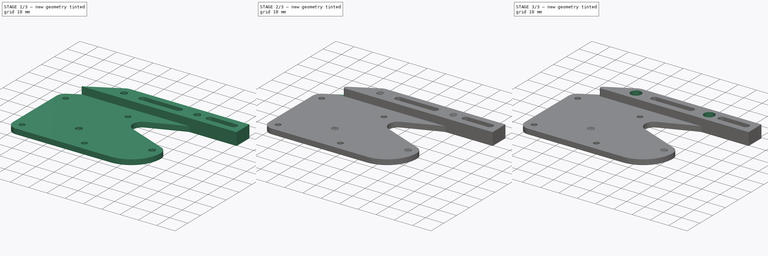
[diagram: build sequence overview — one tinted view per stage of 3, left to right]
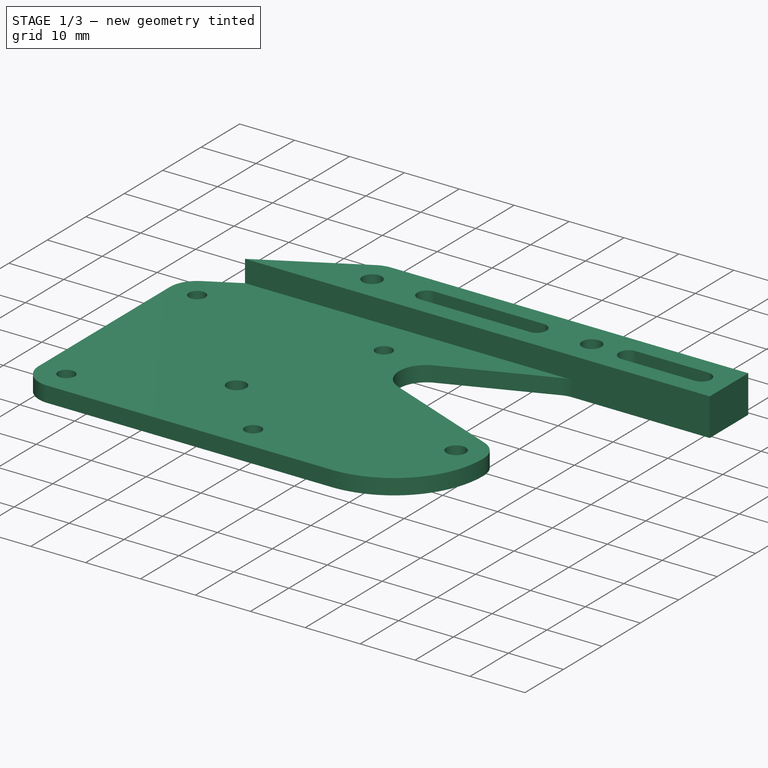
[diagram: stage 1 of 3 — iso view after this stage's code; geometry added in this stage tinted green]
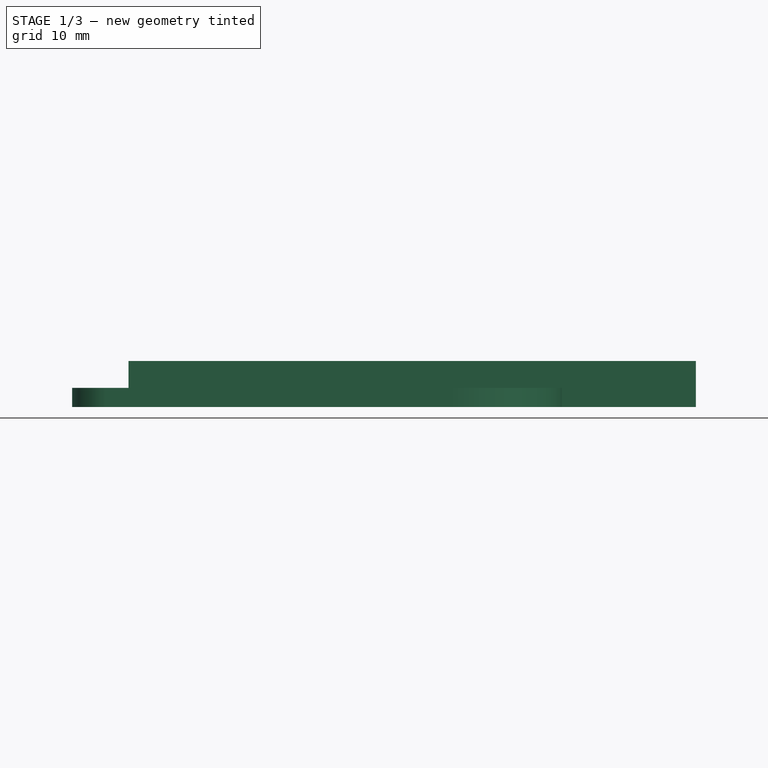
[diagram: stage 1 of 3 — front view after this stage's code; geometry added in this stage tinted green]
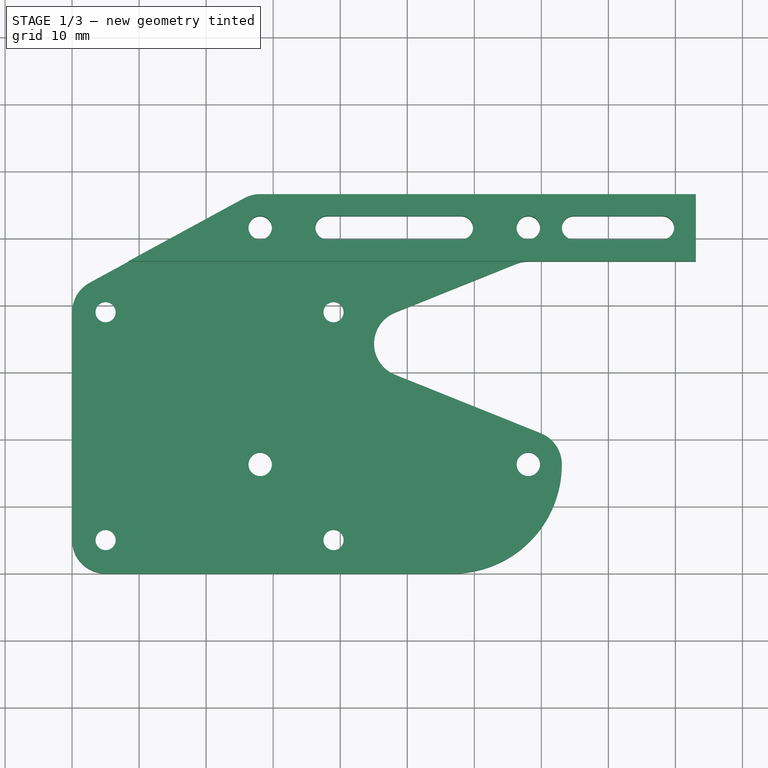
[diagram: stage 1 of 3 — top view after this stage's code; geometry added in this stage tinted green]
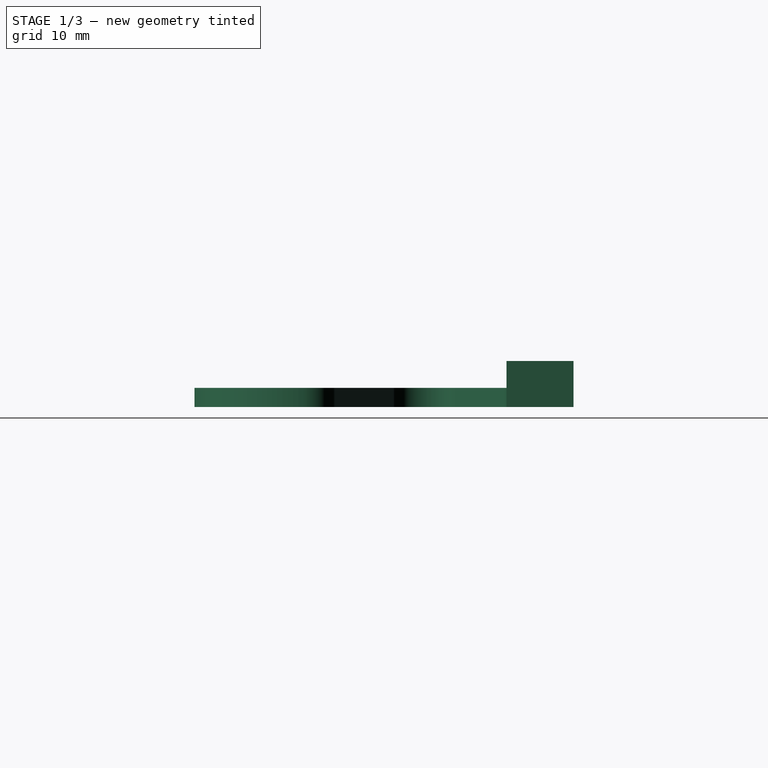
[diagram: stage 1 of 3 — right view after this stage's code; geometry added in this stage tinted green]
FCSTD DOCUMENT  (FreeCAD 2022.111R28429 (Git))
Label: E1_Plate
License: All rights reserved
LicenseURL: http://en.wikipedia.org/wiki/All_rights_reserved
objects: Sketcher::SketchObject×6, PartDesign::Pocket×4, PartDesign::Hole×2, PartDesign::Pad×1, PartDesign::Fillet×1, PartDesign::Body×1
note: 31 computed .brp shape members not serialized (recipe doc carries the construction recipe); baked Part::Feature solids carry a one-line shape summary decoded from their .brp

FEATURE [Sketcher::SketchObject] Sketch006
  FullyConstrained = false
  MapMode = 5
  Support = -> [XY_Plane001]
  TreeRank = 0
  sketch-geometry (61):
    g0: LineSegment [constr] StartX=5 StartY=39 StartZ=0 EndX=39 EndY=39 EndZ=0
    g1: LineSegment [constr] StartX=39 StartY=39 StartZ=0 EndX=39 EndY=5 EndZ=0
    g2: LineSegment [constr] StartX=39 StartY=5 StartZ=0 EndX=5 EndY=5 EndZ=0
    g3: LineSegment [constr] StartX=5 StartY=5 StartZ=0 EndX=5 EndY=39 EndZ=0
    g4: LineSegment [constr] StartX=28.06 StartY=51.55 StartZ=0 EndX=68.06 EndY=51.55 EndZ=0
    g5: LineSegment [constr] StartX=68.06 StartY=51.55 StartZ=0 EndX=68.06 EndY=16.3 EndZ=0
    g6: LineSegment [constr] StartX=68.06 StartY=16.3 StartZ=0 EndX=28.06 EndY=16.3 EndZ=0
    g7: LineSegment [constr] StartX=28.06 StartY=16.3 StartZ=0 EndX=28.06 EndY=51.55 EndZ=0
    g8: Circle CenterX=5 CenterY=5 CenterZ=0 NormalX=0 NormalY=0 NormalZ=1 AngleXU=0 Radius=1.5
    g9: Circle CenterX=39 CenterY=5 CenterZ=0 NormalX=0 NormalY=0 NormalZ=1 AngleXU=0 Radius=1.5
    g10: Circle CenterX=39 CenterY=39 CenterZ=0 NormalX=0 NormalY=0 NormalZ=1 AngleXU=0 Radius=1.5
    g11: Circle CenterX=5 CenterY=39 CenterZ=0 NormalX=0 NormalY=0 NormalZ=1 AngleXU=0 Radius=1.5
    g12: Circle CenterX=28.06 CenterY=51.55 CenterZ=0 NormalX=0 NormalY=0 NormalZ=1 AngleXU=0 Radius=1.75
    g13: Circle CenterX=68.06 CenterY=51.55 CenterZ=0 NormalX=0 NormalY=0 NormalZ=1 AngleXU=0 Radius=1.75
    g14: Circle CenterX=68.06 CenterY=16.3 CenterZ=0 NormalX=0 NormalY=0 NormalZ=1 AngleXU=0 Radius=1.75
    g15: Circle CenterX=28.06 CenterY=16.3 CenterZ=0 NormalX=0 NormalY=0 NormalZ=1 AngleXU=0 Radius=1.75
    g16: LineSegment StartX=5 StartY=0 StartZ=0 EndX=56.76 EndY=0 EndZ=0
    g17: LineSegment StartX=48.1831 StartY=38.953 StartZ=0 EndX=66.1961 EndY=46.1896 EndZ=0
    g18: LineSegment StartX=68.06 StartY=46.55 StartZ=0 EndX=93.06 EndY=46.55 EndZ=0
    g19: LineSegment StartX=93.06 StartY=56.55 StartZ=0 EndX=28.06 EndY=56.55 EndZ=0
    g20: LineSegment StartX=-9e-16 StartY=39 StartZ=0 EndX=-9e-16 EndY=5 EndZ=0
    g21: LineSegment [constr] StartX=5 StartY=5 StartZ=0 EndX=5 EndY=0 EndZ=0
    g22: LineSegment [constr] StartX=5 StartY=5 StartZ=0 EndX=0 EndY=5 EndZ=0
    g23: ArcOfCircle CenterX=68.06 CenterY=16.3 CenterZ=0 NormalX=0 NormalY=0 NormalZ=1 AngleXU=0 Radius=5 StartAngle=0 EndAngle=1.18879
    g24: LineSegment [constr] StartX=68.06 StartY=16.3 StartZ=0 EndX=73.06 EndY=16.3 EndZ=0
    g25: ArcOfCircle CenterX=68.06 CenterY=41.55 CenterZ=0 NormalX=0 NormalY=0 NormalZ=1 AngleXU=0 Radius=5 StartAngle=1.5708 EndAngle=1.9528
    g26: LineSegment [constr] StartX=68.06 StartY=51.55 StartZ=0 EndX=68.06 EndY=46.55 EndZ=0
    g27: LineSegment [constr] StartX=5 StartY=39 StartZ=0 EndX=-9e-16 EndY=39 EndZ=0
    g28: LineSegment [constr] StartX=28.06 StartY=51.55 StartZ=0 EndX=28.06 EndY=56.55 EndZ=0
    g29: ArcOfCircle CenterX=28.06 CenterY=51.55 CenterZ=0 NormalX=0 NormalY=0 NormalZ=1 AngleXU=0 Radius=5 StartAngle=1.5708 EndAngle=2.0692
    g30: ArcOfCircle CenterX=5 CenterY=39 CenterZ=0 NormalX=0 NormalY=0 NormalZ=1 AngleXU=0 Radius=5 StartAngle=2.0692 EndAngle=3.14159
    g31: LineSegment StartX=2.60988 StartY=43.3917 StartZ=0 EndX=25.6699 EndY=55.9417 EndZ=0
    g32: LineSegment StartX=93.06 StartY=56.55 StartZ=0 EndX=93.06 EndY=51.55 EndZ=0
    g33: LineSegment StartX=93.06 StartY=51.55 StartZ=0 EndX=93.06 EndY=46.55 EndZ=0
    g34: ArcOfCircle CenterX=56.76 CenterY=16.3 CenterZ=0 NormalX=0 NormalY=0 NormalZ=1 AngleXU=0 Radius=16.3 StartAngle=4.71239 EndAngle=6.28319
    g35: ArcOfCircle CenterX=5 CenterY=5 CenterZ=0 NormalX=0 NormalY=0 NormalZ=1 AngleXU=0 Radius=5 StartAngle=3.14159 EndAngle=4.71239
    g36: ArcOfCircle CenterX=38.06 CenterY=51.55 CenterZ=0 NormalX=0 NormalY=0 NormalZ=1 AngleXU=0 Radius=1.75 StartAngle=1.5708 EndAngle=4.71239
    g37: ArcOfCircle CenterX=58.06 CenterY=51.55 CenterZ=0 NormalX=0 NormalY=0 NormalZ=1 AngleXU=0 Radius=1.75 StartAngle=4.71239 EndAngle=7.85398
    g38: LineSegment StartX=38.06 StartY=49.8 StartZ=0 EndX=58.06 EndY=49.8 EndZ=0
    g39: LineSegment StartX=38.06 StartY=53.3 StartZ=0 EndX=58.06 EndY=53.3 EndZ=0
    g40: LineSegment StartX=48.1831 StartY=29.6738 StartZ=0 EndX=69.9239 EndY=20.9396 EndZ=0
    g41: ArcOfCircle CenterX=50.047 CenterY=34.3134 CenterZ=0 NormalX=0 NormalY=0 NormalZ=1 AngleXU=0 Radius=5 StartAngle=1.9528 EndAngle=4.33038
    g42: LineSegment [constr] StartX=50.047 StartY=34.3134 StartZ=0 EndX=45.047 EndY=34.3134 EndZ=0
    g43: LineSegment [constr] StartX=48.1831 StartY=38.953 StartZ=0 EndX=48.1831 EndY=34.3134 EndZ=0
    g44: LineSegment [constr] StartX=48.1831 StartY=29.6738 StartZ=0 EndX=48.1831 EndY=34.3134 EndZ=0
    g45: ArcOfCircle CenterX=74.81 CenterY=51.55 CenterZ=0 NormalX=0 NormalY=0 NormalZ=1 AngleXU=0 Radius=1.75 StartAngle=1.5708 EndAngle=4.71239
    g46: ArcOfCircle CenterX=88.06 CenterY=51.55 CenterZ=0 NormalX=0 NormalY=0 NormalZ=1 AngleXU=0 Radius=1.75 StartAngle=4.71239 EndAngle=7.85398
    g47: LineSegment StartX=74.81 StartY=49.8 StartZ=0 EndX=88.06 EndY=49.8 EndZ=0
    g48: LineSegment StartX=74.81 StartY=53.3 StartZ=0 EndX=88.06 EndY=53.3 EndZ=0
    g49: LineSegment [constr] StartX=74.81 StartY=51.55 StartZ=0 EndX=69.81 EndY=51.55 EndZ=0
    g50: LineSegment [constr] StartX=88.06 StartY=51.55 StartZ=0 EndX=93.06 EndY=51.55 EndZ=0
    g51: ArcOfCircle [constr] CenterX=15.6807 CenterY=33.5299 CenterZ=0 NormalX=0 NormalY=0 NormalZ=1 AngleXU=0 Radius=5 StartAngle=1.5708 EndAngle=3.14159
    g52: ArcOfCircle [constr] CenterX=28.3193 CenterY=33.5299 CenterZ=0 NormalX=0 NormalY=0 NormalZ=1 AngleXU=0 Radius=5 StartAngle=5.49779 EndAngle=7.85398
    g53: ArcOfCircle [constr] CenterX=15.6807 CenterY=20.8913 CenterZ=0 NormalX=0 NormalY=0 NormalZ=1 AngleXU=0 Radius=5 StartAngle=3.14159 EndAngle=5.49779
    g54: LineSegment [constr] StartX=15.6807 StartY=38.5299 StartZ=0 EndX=28.3193 EndY=38.5299 EndZ=0
    g55: LineSegment [constr] StartX=31.8548 StartY=29.9943 StartZ=0 EndX=19.2163 EndY=17.3558 EndZ=0
    g56: LineSegment [constr] StartX=10.6807 StartY=20.8913 StartZ=0 EndX=10.6807 EndY=33.5299 EndZ=0
    g57: Circle [constr] CenterX=28.06 CenterY=16.3 CenterZ=0 NormalX=0 NormalY=0 NormalZ=1 AngleXU=0 Radius=7
    g58: Circle [constr] CenterX=5 CenterY=39 CenterZ=0 NormalX=0 NormalY=0 NormalZ=1 AngleXU=0 Radius=7
    g59: Circle [constr] CenterX=5 CenterY=5 CenterZ=0 NormalX=0 NormalY=0 NormalZ=1 AngleXU=0 Radius=7
    g60: Circle [constr] CenterX=39 CenterY=39 CenterZ=0 NormalX=0 NormalY=0 NormalZ=1 AngleXU=0 Radius=7
  constraints (156):
    c: Coincident(g0,g1)
    c: Coincident(g1,g2)
    c: Coincident(g2,g3)
    c: Coincident(g3,g0)
    c: Horizontal(g0)
    c: Horizontal(g2)
    c: Vertical(g1)
    c: Vertical(g3)
    c: Coincident(g4,g5)
    c: Coincident(g5,g6)
    c: Coincident(g6,g7)
    c: Coincident(g7,g4)
    c: Horizontal(g4)
    c: Horizontal(g6)
    c: Vertical(g5)
    c: Vertical(g7)
    c: Coincident(g8,g2)
    c: Coincident(g9,g1)
    c: Coincident(g10,g0)
    c: Coincident(g11,g0)
    c: Diameter(g11) = 3
    c: Equal(g11,g9)
    c: Equal(g11,g8)
    c: Coincident(g12,g4)
    c: Coincident(g13,g4)
    c: Coincident(g14,g5)
    c: Coincident(g15,g6)
    c: Diameter(g15) = 3.5
    c: Equal(g15,g14)
    c: Equal(g15,g13)
    c: Equal(g15,g12)
    c: DistanceX(g4,g4) = 40
    c: DistanceY(g5,g5) = 35.25
    c: DistanceX(g0,g0) = 34
    c: DistanceY(g1,g1) = 34
    c: DistanceX(g8,g15) = 23.06
    c: DistanceY(g8,g15) = 11.3
    c: Horizontal(g16)
    c: Horizontal(g18)
    c: Horizontal(g19)
    c: Vertical(g20)
    c: Coincident(g21,g8)
    c: Vertical(g21)
    c: Coincident(g22,g8)
    c: PointOnObject(g22,g20)
    c: Horizontal(g22)
    c: Equal(g21,g22)
    c: DistanceX(g22,g22) = 5
    c: Coincident(g24,g23) = -1.5708
    c: Coincident(g24,g14)
    c: Equal(g24,g21)
    c: Tangent(g18,g25) = 1.5708
    c: Tangent(g17,g25) = 1.5708
    c: Equal(g25,g23)
    c: Coincident(g26,g13)
    c: PointOnObject(g26,g25)
    c: Perpendicular(g25,g26)
    c: Equal(g26,g24)
    c: Horizontal(g20,g11)
    c: Coincident(g27,g11)
    c: Coincident(g27,g20)
    c: Coincident(g28,g12)
    c: Vertical(g28)
    c: Coincident(g19,g28)
    c: Equal(g28,g27)
    c: Coincident(g29,g12)
    c: Coincident(g29,g19)
    c: Coincident(g30,g11)
    c: Coincident(g30,g20)
    c: Tangent(g31,g29) = 1.5708
    c: Tangent(g31,g30) = 1.5708
    c: Coincident(g32,g19)
    c: Coincident(g33,g32)
    c: Coincident(g33,g18)
    c: Vertical(g33)
    c: Vertical(g32)
    c: Equal(g32,g33)
    c: Horizontal(g32,g13)
    c: Coincident(g23,g14)
    c: DistanceX(g18,g18) = 25
    c: Tangent(g16,g34) = -1.5708
    c: Tangent(g23,g34) = -1.5708
    c: Horizontal(g24)
    c: Tangent(g20,g35) = -1.5708
    c: Tangent(g16,g35) = -1.5708
    c: Coincident(g16,g21)
    c: Vertical(g20,g-1)
    c: Horizontal(g16,g-1)
    c: Tangent(g36,g39) = 1.5708
    c: Tangent(g36,g38) = -1.5708
    c: Tangent(g38,g37) = -1.5708
    c: Tangent(g39,g37) = 1.5708
    c: Horizontal(g38)
    c: Equal(g36,g37)
    c: PointOnObject(g36,g4)
    c: Equal(g37,g13)
    c: DistanceX(g12,g36) = 10
    c: DistanceX(g37,g13) = 10
    c: Tangent(g40,g23) = 1.5708
    c: Equal(g41,g23)
    c: Tangent(g41,g40) = -1.5708
    c: Tangent(g41,g17) = 1.5708
    c: Coincident(g42,g41)
    c: PointOnObject(g42,g41)
    c: Horizontal(g42)
    c: Coincident(g43,g17)
    c: PointOnObject(g43,g42)
    c: Vertical(g43)
    c: Coincident(g44,g40)
    c: Coincident(g44,g43)
    c: Vertical(g44)
    c: Tangent(g45,g48) = 1.5708
    c: Tangent(g45,g47) = -1.5708
    c: Tangent(g47,g46) = -1.5708
    c: Tangent(g48,g46) = 1.5708
    c: Horizontal(g47)
    c: Equal(g45,g46)
    c: Equal(g37,g45)
    c: Horizontal(g45,g37)
    c: Coincident(g49,g45)
    c: PointOnObject(g49,g13)
    c: Horizontal(g49)
    c: Coincident(g50,g46)
    c: Coincident(g50,g32)
    c: Equal(g49,g50)
    c: DistanceX(g50,g50) = 5
    c: Equal(g51,g53)
    c: Equal(g53,g52)
    c: Equal(g52,g23)
    c: Coincident(g54,g52)
    c: Coincident(g55,g52)
    c: Coincident(g55,g53)
    c: Coincident(g56,g53)
    c: Coincident(g56,g51)
    c: Vertical(g56)
    c: Horizontal(g54)
    c: Coincident(g51,g54)
    c: Tangent(g54,g52)
    c: Tangent(g52,g55)
    c: Tangent(g55,g53)
    c: Tangent(g53,g56)
    c: Tangent(g56,g51)
    c: Tangent(g51,g54)
    c: Coincident(g57,g15)
    c: Tangent(g57,g55)
    c: Coincident(g58,g11)
    c: Tangent(g58,g51)
    c: Coincident(g59,g8)
    c: Equal(g58,g59)
    c: Coincident(g60,g10)
    c: Equal(g60,g57)
    c: Tangent(g52,g60)
    c: Tangent(g60,g41)
    c: Equal(g59,g57)
    c: Radius(g60) = 7
    c: Angle(g55) = -2.35619
FEATURE [PartDesign::Pad] Pad002
  ClaimChildren = false
  Direction = (1,1,1)
  Fit = 0
  FitJoin = 0
  InnerFit = 0
  InnerFitJoin = 0
  InnerTaperAngle = 0
  InnerTaperAngleRev = 0
  Length = 6.85
  Length2 = 100
  Linearize = true
  NewSolid = false
  Profile = -> Sketch006
  Refine = true
  Suppress = false
  TreeRank = 0
  Type = 0
  _ProfileBasedVersion = 1
FEATURE [PartDesign::Hole] Hole001
  BaseFeature = -> Pad002
  ClaimChildren = false
  CustomThreadClearance = 0
  Depth = 1.8
  DepthType = 0
  Diameter = 6
  DrillForDepth = false
  DrillPoint = 0
  DrillPointAngle = 118
  Fit = 0
  FitJoin = 0
  HoleCutCountersinkAngle = 90
  HoleCutCustomValues = false
  HoleCutDepth = 0
  HoleCutDiameter = 6.1
  HoleCutType = 0
  InnerFit = 0
  InnerFitJoin = 0
  ModelThread = false
  NewSolid = false
  Profile = -> Pad002 [Edge60,Edge57,Edge58,Edge59]
  Refine = true
  Reversed = true
  Suppress = false
  Tapered = false
  TaperedAngle = 90
  ThreadClass = 0
  ThreadDepth = 1.8
  ThreadDepthType = 0
  ThreadDirection = 0
  ThreadFit = 0
  ThreadSize = 0
  ThreadType = 0
  Threaded = false
  TreeRank = 0
  UseCustomThreadClearance = false
  _ProfileBasedVersion = 1
FEATURE [Sketcher::SketchObject] Sketch008
  FullyConstrained = true
  MapMode = 5
  Placement = pos=(0,0,2.85) rot=(0,0,1;0rad)
  TreeRank = 0
FEATURE [Sketcher::SketchObject] Sketch
  ExternalGeometry = -> [Hole001]
  FullyConstrained = false
  MapMode = 5
  Placement = pos=(0,0,6.85) rot=(0,0,1;0rad)
  Support = -> [Hole001]
  TreeRank = 0
  sketch-geometry (4):
    g0: LineSegment StartX=-10.7105 StartY=46.55 StartZ=0 EndX=86.9712 EndY=46.55 EndZ=0
    g1: LineSegment StartX=86.9712 StartY=46.55 StartZ=0 EndX=86.9712 EndY=-9.55124 EndZ=0
    g2: LineSegment StartX=86.9712 StartY=-9.55124 StartZ=0 EndX=-10.7105 EndY=-9.55124 EndZ=0
    g3: LineSegment StartX=-10.7105 StartY=-9.55124 StartZ=0 EndX=-10.7105 EndY=46.55 EndZ=0
  constraints (9):
    c: Coincident(g0,g1)
    c: Coincident(g1,g2)
    c: Coincident(g2,g3)
    c: Coincident(g3,g0)
    c: Horizontal(g0)
    c: Horizontal(g2)
    c: Vertical(g1)
    c: Vertical(g3)
    c: Horizontal(g-3,g0)
FEATURE [PartDesign::Pocket] Pocket
  BaseFeature = -> Hole001
  ClaimChildren = false
  Fit = 0
  FitJoin = 0
  InnerFit = 0
  InnerFitJoin = 0
  InnerTaperAngle = 0
  InnerTaperAngleRev = 0
  Length = 4
  Length2 = 100
  Linearize = true
  NewSolid = false
  Profile = -> Sketch
  Refine = true
  Suppress = false
  TreeRank = 0
  Type = 0
  _ProfileBasedVersion = 1
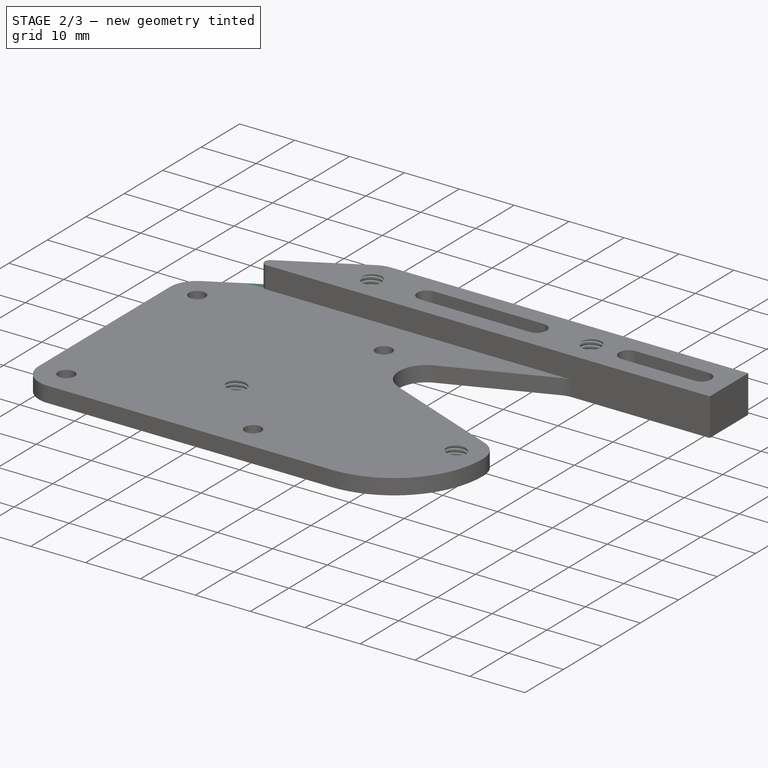
[diagram: stage 2 of 3 — iso view after this stage's code; geometry added in this stage tinted green]
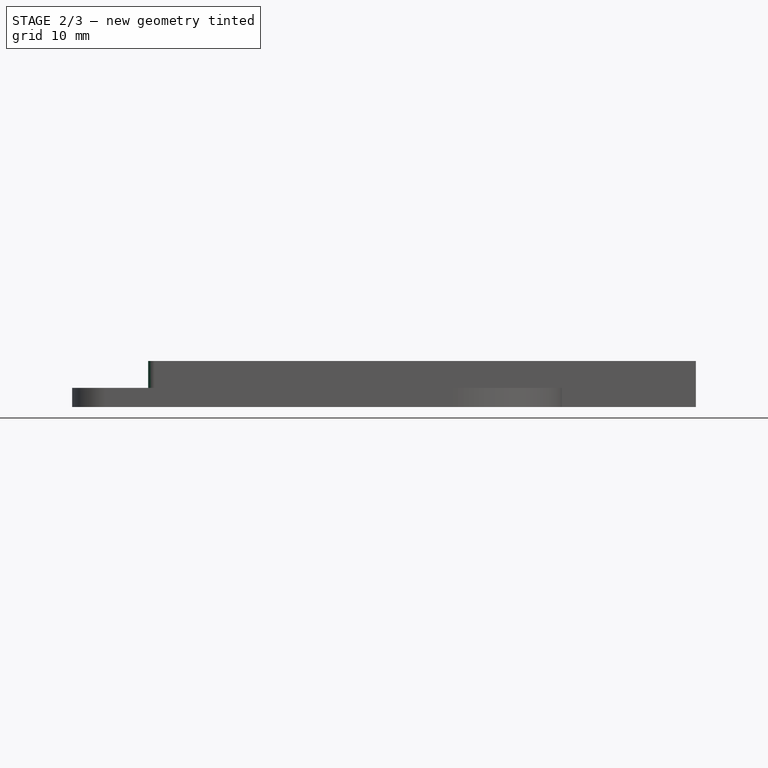
[diagram: stage 2 of 3 — front view after this stage's code; geometry added in this stage tinted green]
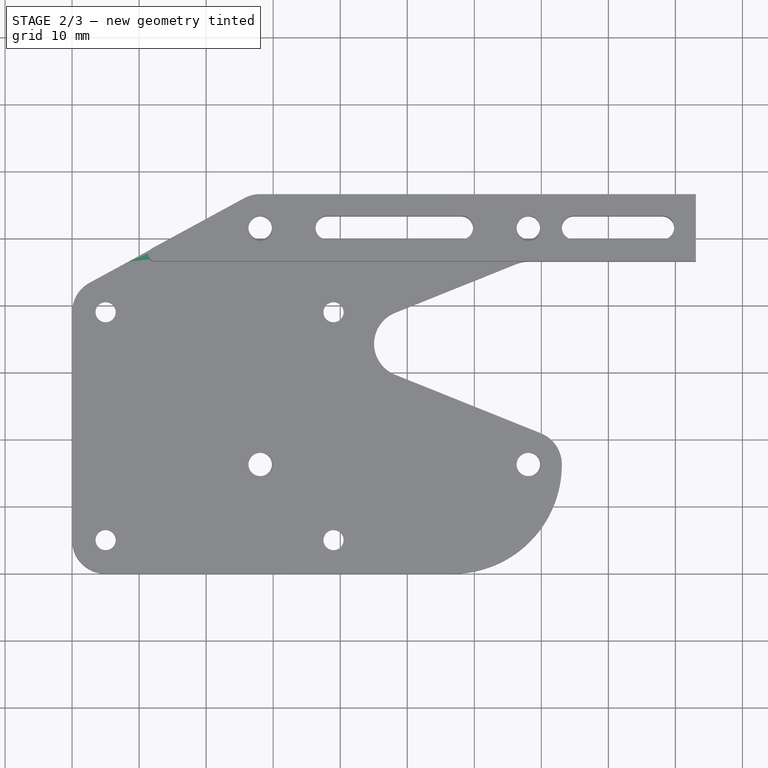
[diagram: stage 2 of 3 — top view after this stage's code; geometry added in this stage tinted green]
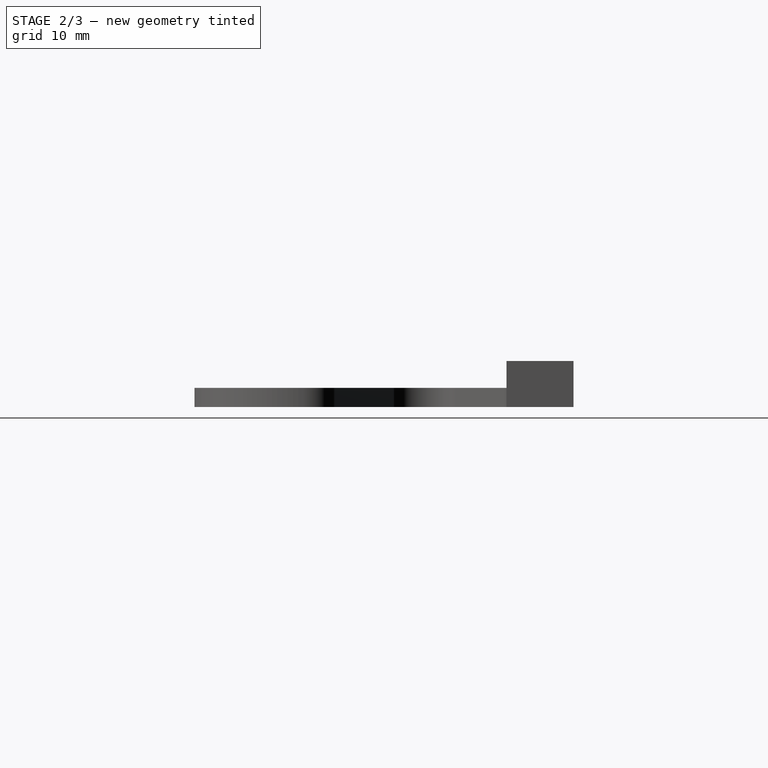
[diagram: stage 2 of 3 — right view after this stage's code; geometry added in this stage tinted green]
FEATURE [PartDesign::Fillet] Fillet
  Base = -> Pocket [Edge55]
  BaseFeature = -> Pocket
  NewSolid = false
  Radius = 1
  Refine = true
  SupportTransform = false
  Suppress = false
  TreeRank = 0
FEATURE [PartDesign::Hole] Hole
  BaseFeature = -> Fillet
  ClaimChildren = false
  CustomThreadClearance = 0
  Depth = 25
  DepthType = 1
  Diameter = 3.322
  DrillForDepth = false
  DrillPoint = 1
  DrillPointAngle = 118
  Fit = 0
  FitJoin = 0
  HoleCutCountersinkAngle = 90
  HoleCutCustomValues = false
  HoleCutDepth = 0
  HoleCutDiameter = 6.1
  HoleCutType = 0
  InnerFit = 0
  InnerFitJoin = 0
  ModelThread = true
  NewSolid = false
  Profile = -> Fillet [Edge89,Edge84,Edge53,Edge57]
  Refine = true
  Reversed = true
  Suppress = false
  Tapered = false
  TaperedAngle = 90
  ThreadClass = 0
  ThreadDepth = 220.402
  ThreadDepthType = 0
  ThreadDirection = 0
  ThreadFit = 0
  ThreadSize = 11
  ThreadType = 1
  Threaded = true
  TreeRank = 0
  UseCustomThreadClearance = false
  _ProfileBasedVersion = 1
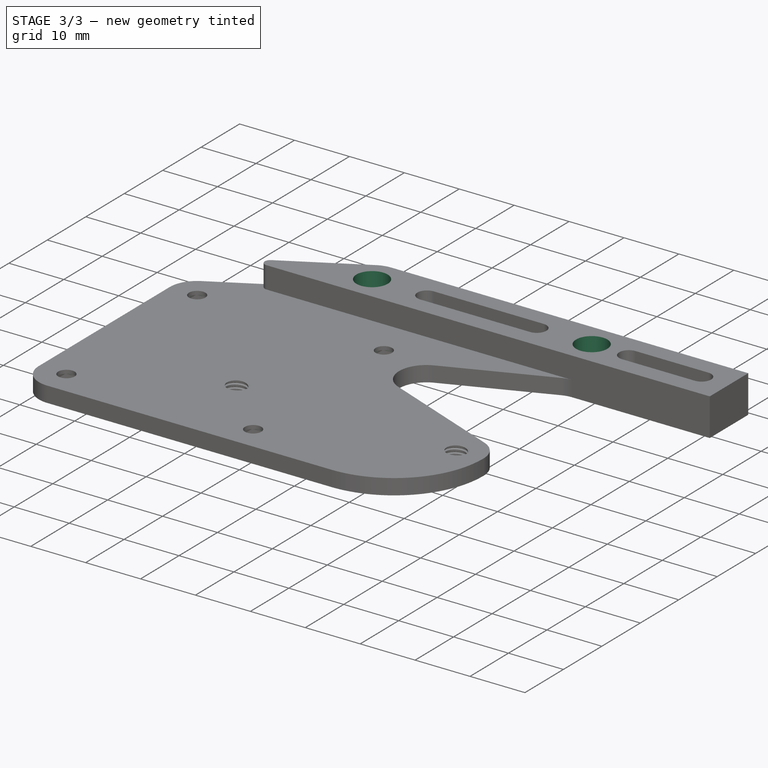
[diagram: stage 3 of 3 — iso view after this stage's code; geometry added in this stage tinted green]
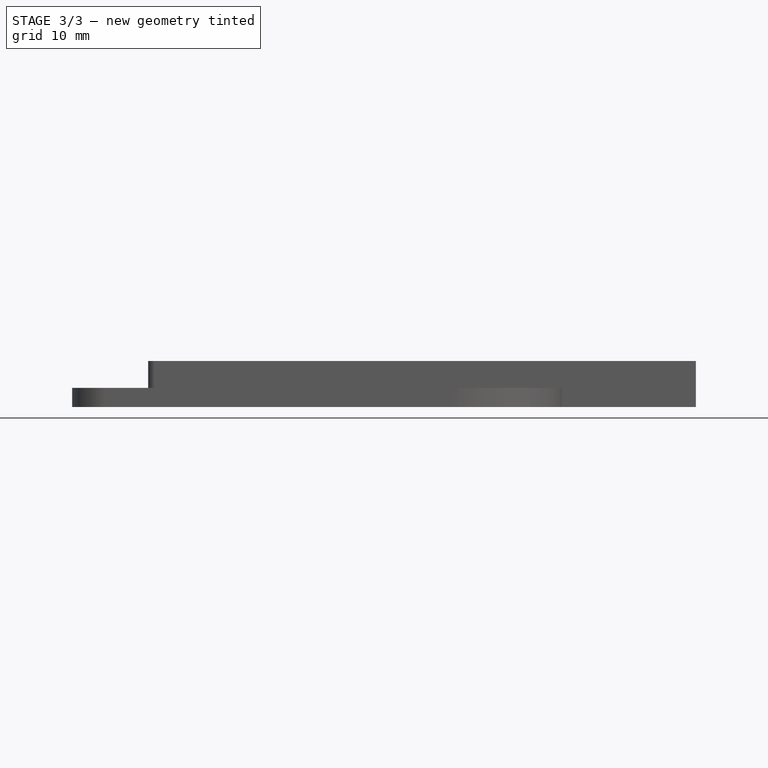
[diagram: stage 3 of 3 — front view after this stage's code; geometry added in this stage tinted green]
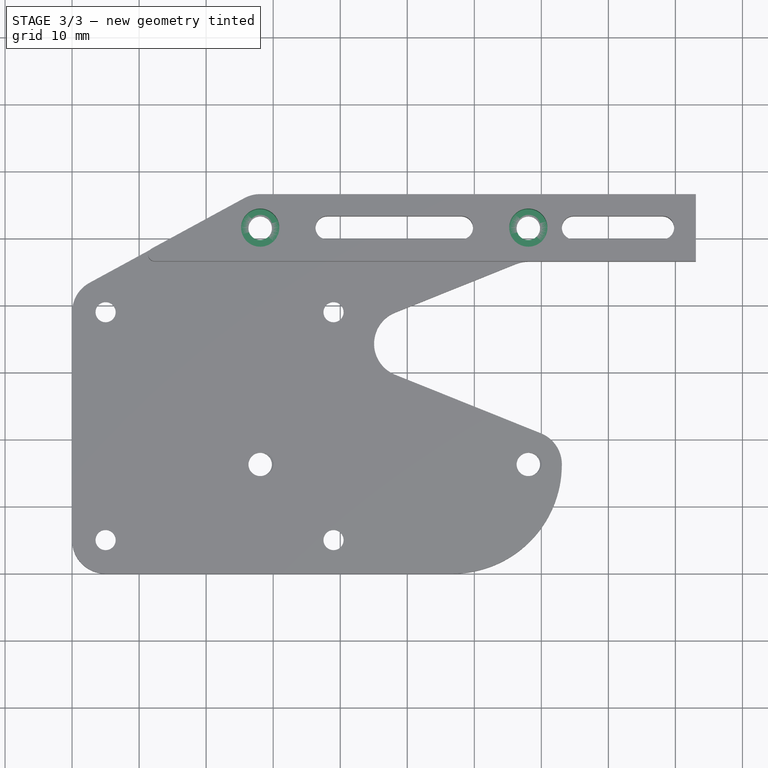
[diagram: stage 3 of 3 — top view after this stage's code; geometry added in this stage tinted green]
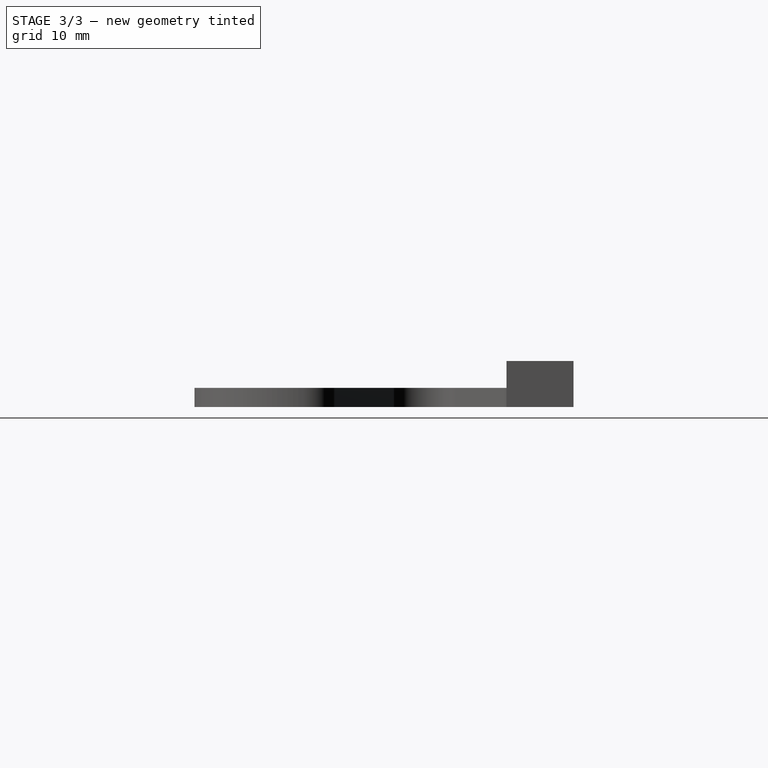
[diagram: stage 3 of 3 — right view after this stage's code; geometry added in this stage tinted green]
FEATURE [Sketcher::SketchObject] Sketch009
  ExternalGeometry = -> [Hole]
  FullyConstrained = true
  MapMode = 5
  Placement = pos=(0,0,1.8) rot=(1,0,0;3.14159rad)
  Support = -> [Hole]
  TreeRank = 0
  sketch-geometry (16):
    g0: LineSegment StartX=3.5 StartY=-2.40192 StartZ=0 EndX=3.5 EndY=-7.59808 EndZ=0
    g1: LineSegment StartX=6.5 StartY=-2.40192 StartZ=0 EndX=6.5 EndY=-7.59808 EndZ=0
    g2: ArcOfCircle CenterX=5 CenterY=-5 CenterZ=0 NormalX=0 NormalY=0 NormalZ=1 AngleXU=0 Radius=3 StartAngle=1.0472 EndAngle=2.0944
    g3: ArcOfCircle CenterX=5 CenterY=-5 CenterZ=0 NormalX=0 NormalY=0 NormalZ=1 AngleXU=0 Radius=3 StartAngle=4.18879 EndAngle=5.23599
    g4: LineSegment StartX=3.5 StartY=-36.4019 StartZ=0 EndX=3.5 EndY=-41.5981 EndZ=0
    g5: LineSegment StartX=6.5 StartY=-36.4019 StartZ=0 EndX=6.5 EndY=-41.5981 EndZ=0
    g6: ArcOfCircle CenterX=5 CenterY=-39 CenterZ=0 NormalX=0 NormalY=0 NormalZ=1 AngleXU=0 Radius=3 StartAngle=1.0472 EndAngle=2.0944
    g7: ArcOfCircle CenterX=5 CenterY=-39 CenterZ=0 NormalX=0 NormalY=0 NormalZ=1 AngleXU=0 Radius=3 StartAngle=4.18879 EndAngle=5.23599
    g8: LineSegment StartX=37.5 StartY=-36.4019 StartZ=0 EndX=37.5 EndY=-41.5981 EndZ=0
    g9: LineSegment StartX=40.5 StartY=-36.4019 StartZ=0 EndX=40.5 EndY=-41.5981 EndZ=0
    g10: ArcOfCircle CenterX=39 CenterY=-39 CenterZ=0 NormalX=0 NormalY=0 NormalZ=1 AngleXU=0 Radius=3 StartAngle=1.0472 EndAngle=2.0944
    g11: ArcOfCircle CenterX=39 CenterY=-39 CenterZ=0 NormalX=0 NormalY=0 NormalZ=1 AngleXU=0 Radius=3 StartAngle=4.18879 EndAngle=5.23599
    g12: LineSegment StartX=37.5 StartY=-2.40192 StartZ=0 EndX=37.5 EndY=-7.59808 EndZ=0
    g13: LineSegment StartX=40.5 StartY=-2.40192 StartZ=0 EndX=40.5 EndY=-7.59808 EndZ=0
    g14: ArcOfCircle CenterX=39 CenterY=-5 CenterZ=0 NormalX=0 NormalY=0 NormalZ=1 AngleXU=0 Radius=3 StartAngle=1.0472 EndAngle=2.0944
    g15: ArcOfCircle CenterX=39 CenterY=-5 CenterZ=0 NormalX=0 NormalY=0 NormalZ=1 AngleXU=0 Radius=3 StartAngle=4.18879 EndAngle=5.23599
  constraints (56):
    c: PointOnObject(g0,g-6)
    c: PointOnObject(g0,g-6)
    c: Vertical(g0)
    c: PointOnObject(g1,g-6)
    c: PointOnObject(g1,g-6)
    c: Vertical(g1)
    c: Tangent(g-5,g1)
    c: Tangent(g0,g-5)
    c: Coincident(g2,g0)
    c: Coincident(g2,g1)
    c: Tangent(g2,g-6)
    c: Coincident(g3,g0)
    c: Coincident(g3,g1)
    c: Tangent(g3,g-6)
    c: PointOnObject(g4,g-3)
    c: PointOnObject(g4,g-3)
    c: Vertical(g4)
    c: Tangent(g-4,g4)
    c: PointOnObject(g5,g-3)
    c: PointOnObject(g5,g-3)
    c: Vertical(g5)
    c: Tangent(g5,g-4)
    c: Coincident(g6,g4)
    c: Coincident(g6,g5)
    c: Tangent(g6,g-3)
    c: Coincident(g7,g4)
    c: Coincident(g7,g5)
    c: Tangent(g7,g-3)
    c: PointOnObject(g8,g-9)
    c: PointOnObject(g8,g-9)
    c: Vertical(g8)
    c: PointOnObject(g9,g-9)
    c: PointOnObject(g9,g-9)
    c: Vertical(g9)
    c: Tangent(g9,g-10)
    c: Tangent(g8,g-10)
    c: Coincident(g10,g8)
    c: Coincident(g10,g9)
    c: Coincident(g11,g8)
    c: Coincident(g11,g9)
    c: Equal(g11,g-9)
    c: Equal(g10,g-9)
    c: PointOnObject(g12,g-7)
    c: PointOnObject(g12,g-7)
    c: Vertical(g12)
    c: PointOnObject(g13,g-7)
    c: PointOnObject(g13,g-7)
    c: Vertical(g13)
    c: Tangent(g13,g-8)
    c: Tangent(g12,g-8)
    c: Coincident(g14,g12)
    c: Coincident(g14,g13)
    c: Coincident(g15,g12)
    c: Coincident(g15,g13)
    c: Tangent(g15,g-7)
    c: Equal(g14,g-7)
FEATURE [PartDesign::Pocket] Pocket001
  BaseFeature = -> Hole
  ClaimChildren = false
  Fit = 0
  FitJoin = 0
  InnerFit = 0
  InnerFitJoin = 0
  InnerTaperAngle = 0
  InnerTaperAngleRev = 0
  Length = 0.2
  Length2 = 100
  Linearize = true
  NewSolid = false
  Profile = -> Sketch009
  Refine = true
  Suppress = false
  TreeRank = 0
  Type = 0
  _ProfileBasedVersion = 1
FEATURE [Sketcher::SketchObject] Sketch010
  ExternalGeometry = -> [Pocket001]
  FullyConstrained = true
  MapMode = 5
  Placement = pos=(0,0,2) rot=(1,0,0;3.14159rad)
  Support = -> [Pocket001]
  TreeRank = 0
  sketch-geometry (16):
    g0: LineSegment StartX=37.5 StartY=-37.5 StartZ=0 EndX=40.5 EndY=-37.5 EndZ=0
    g1: LineSegment StartX=40.5 StartY=-37.5 StartZ=0 EndX=40.5 EndY=-40.5 EndZ=0
    g2: LineSegment StartX=40.5 StartY=-40.5 StartZ=0 EndX=37.5 EndY=-40.5 EndZ=0
    g3: LineSegment StartX=37.5 StartY=-40.5 StartZ=0 EndX=37.5 EndY=-37.5 EndZ=0
    g4: LineSegment StartX=3.5 StartY=-37.5 StartZ=0 EndX=6.5 EndY=-37.5 EndZ=0
    g5: LineSegment StartX=6.5 StartY=-37.5 StartZ=0 EndX=6.5 EndY=-40.5 EndZ=0
    g6: LineSegment StartX=6.5 StartY=-40.5 StartZ=0 EndX=3.5 EndY=-40.5 EndZ=0
    g7: LineSegment StartX=3.5 StartY=-40.5 StartZ=0 EndX=3.5 EndY=-37.5 EndZ=0
    g8: LineSegment StartX=3.5 StartY=-3.5 StartZ=0 EndX=6.5 EndY=-3.5 EndZ=0
    g9: LineSegment StartX=6.5 StartY=-3.5 StartZ=0 EndX=6.5 EndY=-6.5 EndZ=0
    g10: LineSegment StartX=6.5 StartY=-6.5 StartZ=0 EndX=3.5 EndY=-6.5 EndZ=0
    g11: LineSegment StartX=3.5 StartY=-6.5 StartZ=0 EndX=3.5 EndY=-3.5 EndZ=0
    g12: LineSegment StartX=37.5 StartY=-3.5 StartZ=0 EndX=40.5 EndY=-3.5 EndZ=0
    g13: LineSegment StartX=40.5 StartY=-3.5 StartZ=0 EndX=40.5 EndY=-6.5 EndZ=0
    g14: LineSegment StartX=40.5 StartY=-6.5 StartZ=0 EndX=37.5 EndY=-6.5 EndZ=0
    g15: LineSegment StartX=37.5 StartY=-6.5 StartZ=0 EndX=37.5 EndY=-3.5 EndZ=0
  constraints (48):
    c: Coincident(g0,g1)
    c: Coincident(g1,g2)
    c: Coincident(g2,g3)
    c: Coincident(g3,g0)
    c: Horizontal(g0)
    c: Horizontal(g2)
    c: Vertical(g1)
    c: Vertical(g3)
    c: Tangent(g2,g-4)
    c: Tangent(g1,g-3)
    c: Tangent(g0,g-3)
    c: Tangent(g3,g-4)
    c: Coincident(g4,g5)
    c: Coincident(g5,g6)
    c: Coincident(g6,g7)
    c: Coincident(g7,g4)
    c: Horizontal(g4)
    c: Horizontal(g6)
    c: Vertical(g5)
    c: Vertical(g7)
    c: Tangent(g5,g-6)
    c: Tangent(g4,g-6)
    c: Tangent(g7,g-5)
    c: Tangent(g6,g-5)
    c: Coincident(g8,g9)
    c: Coincident(g9,g10)
    c: Coincident(g10,g11)
    c: Coincident(g11,g8)
    c: Horizontal(g8)
    c: Horizontal(g10)
    c: Vertical(g9)
    c: Vertical(g11)
    c: Tangent(g-7,g10)
    c: Tangent(g-7,g9)
    c: Tangent(g-8,g8)
    c: Tangent(g-8,g11)
    c: Coincident(g12,g13)
    c: Coincident(g13,g14)
    c: Coincident(g14,g15)
    c: Coincident(g15,g12)
    c: Horizontal(g12)
    c: Horizontal(g14)
    c: Vertical(g13)
    c: Vertical(g15)
    c: Tangent(g14,g-9)
    c: Tangent(g13,g-9)
    c: Tangent(g12,g-10)
    c: Tangent(g15,g-9)
FEATURE [PartDesign::Pocket] Pocket002
  BaseFeature = -> Pocket001
  ClaimChildren = false
  Fit = 0
  FitJoin = 0
  InnerFit = 0
  InnerFitJoin = 0
  InnerTaperAngle = 0
  InnerTaperAngleRev = 0
  Length = 0.2
  Length2 = 100
  Linearize = true
  NewSolid = false
  Profile = -> Sketch010
  Refine = true
  Suppress = false
  TreeRank = 0
  Type = 0
  _ProfileBasedVersion = 1
FEATURE [Sketcher::SketchObject] Sketch011
  ExternalGeometry = -> [Pocket002]
  FullyConstrained = true
  MapMode = 5
  Placement = pos=(0,0,6.85) rot=(0,0,1;0rad)
  Support = -> [Pocket002]
  TreeRank = 1
  sketch-geometry (2):
    g0: Circle CenterX=28.06 CenterY=51.55 CenterZ=0 NormalX=0 NormalY=0 NormalZ=1 AngleXU=0 Radius=2.85
    g1: Circle CenterX=68.06 CenterY=51.55 CenterZ=0 NormalX=0 NormalY=0 NormalZ=1 AngleXU=0 Radius=2.85
  constraints (4):
    c: Coincident(g0,g-3)
    c: Diameter(g0) = 5.7
    c: Equal(g0,g1)
    c: Coincident(g1,g-4)
FEATURE [PartDesign::Pocket] Pocket003
  BaseFeature = -> Pocket002
  ClaimChildren = false
  Fit = 0
  FitJoin = 0
  InnerFit = 0
  InnerFitJoin = 0
  InnerTaperAngle = 0
  InnerTaperAngleRev = 0
  Length = 6
  Length2 = 100
  Linearize = true
  NewSolid = false
  Profile = -> Sketch011
  Refine = true
  Suppress = false
  TreeRank = 2
  Type = 0
  _ProfileBasedVersion = 1
FEATURE [PartDesign::Body] Body001  label="E1_Plate"
  AutoGroupSolids = false
  ExportMode = 0
  Group = -> [Sketch006,Pad002,Hole001,Sketch008,Sketch,Pocket,Fillet,Hole,Sketch009,Pocket001,Sketch010,Pocket002,Sketch011,Pocket003]
  Origin = -> Origin001
  Tip = -> Pocket003
  TreeRank = 0
  _ExportChildren = -> [Pad002,Hole001,Sketch008,Pocket,Fillet,Hole,Pocket001,Pocket002,Pocket003]
  _GroupVersion = 1
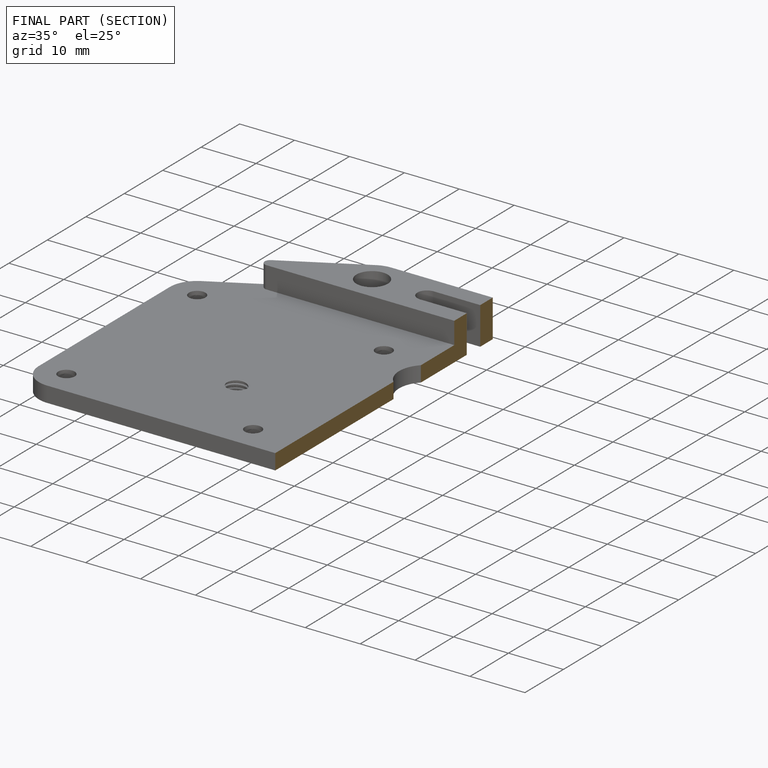
[diagram: finished part — half-section view (interior)]
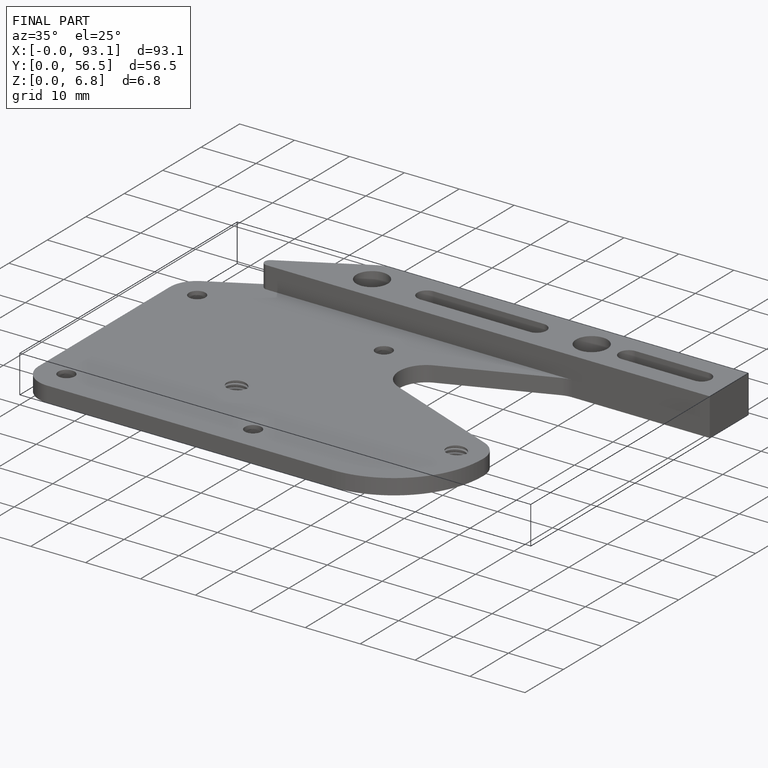
[diagram: finished part — iso view with bounding-box wireframe]
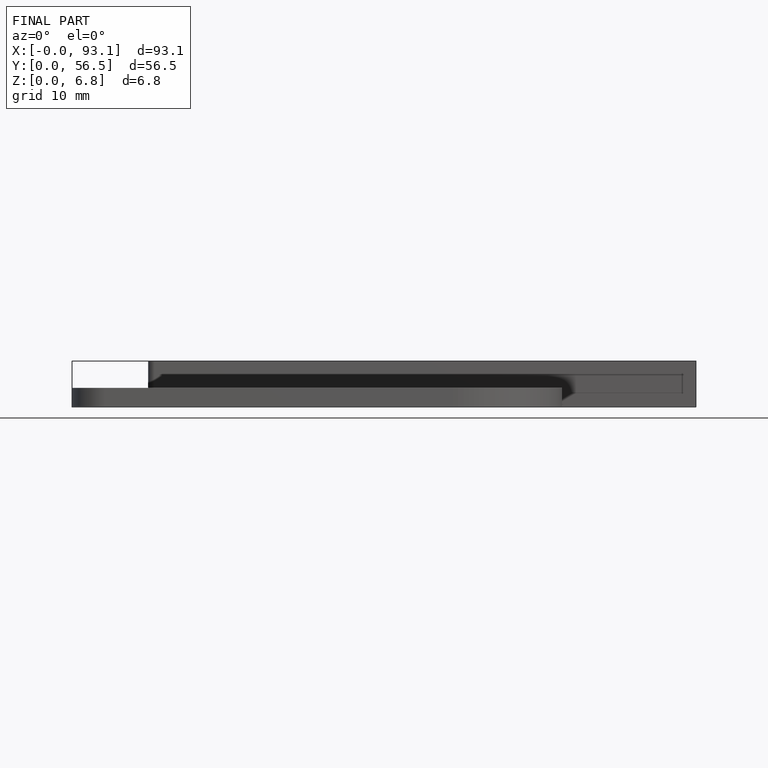
[diagram: finished part — front view with bounding-box wireframe]
